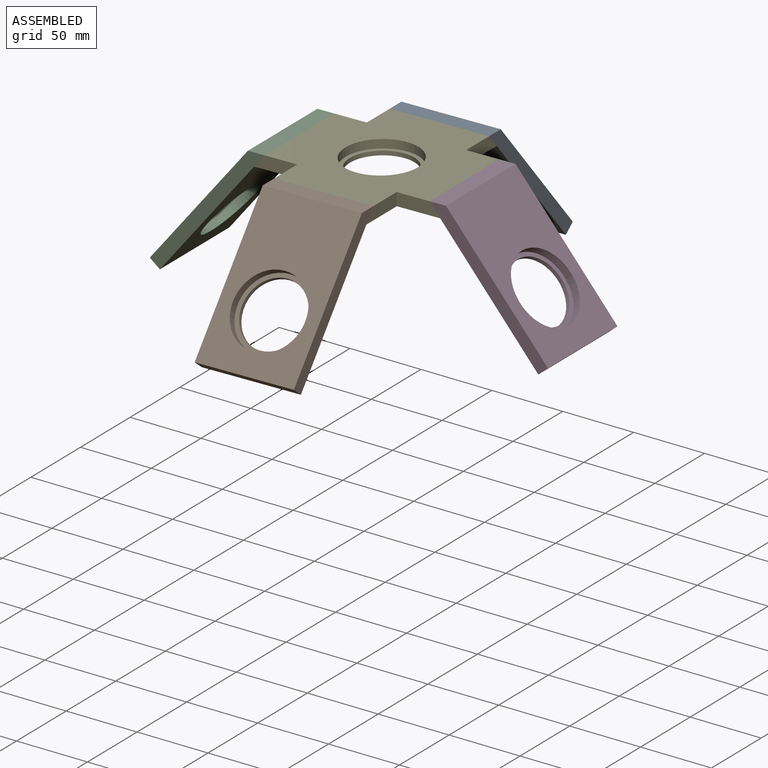
[diagram: assembled view]
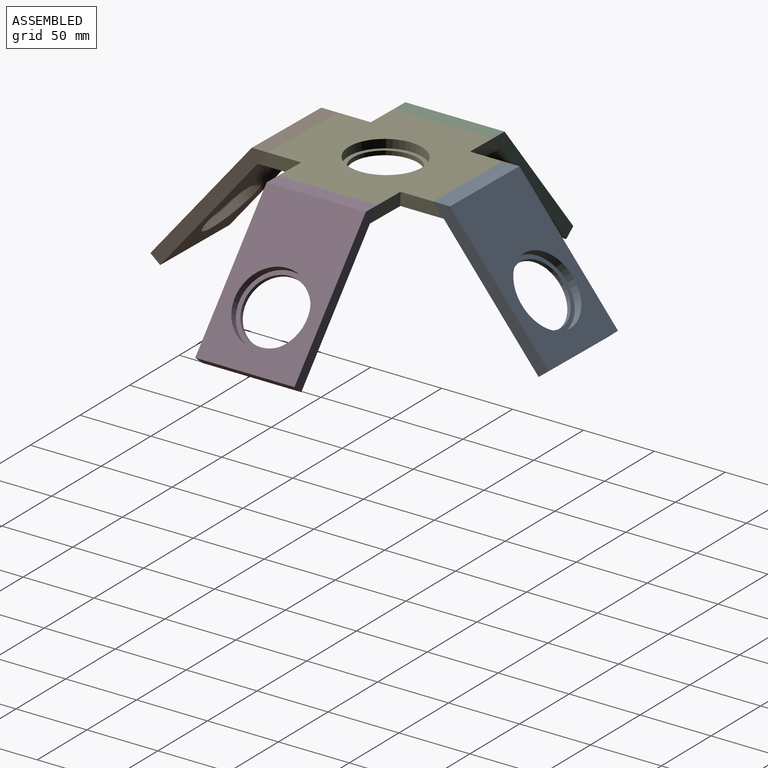
[diagram: assembled view, second angle]
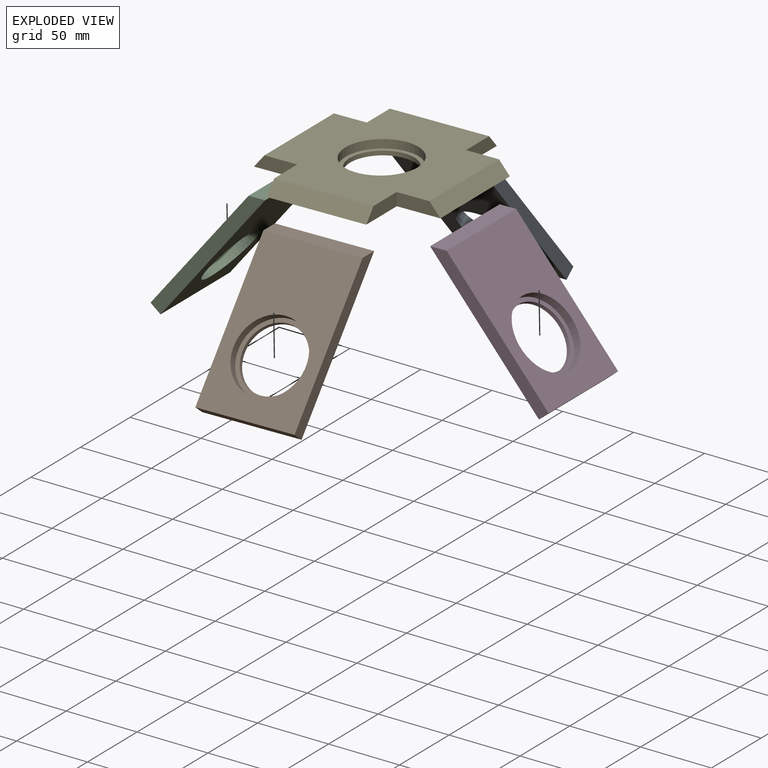
[diagram: exploded view]
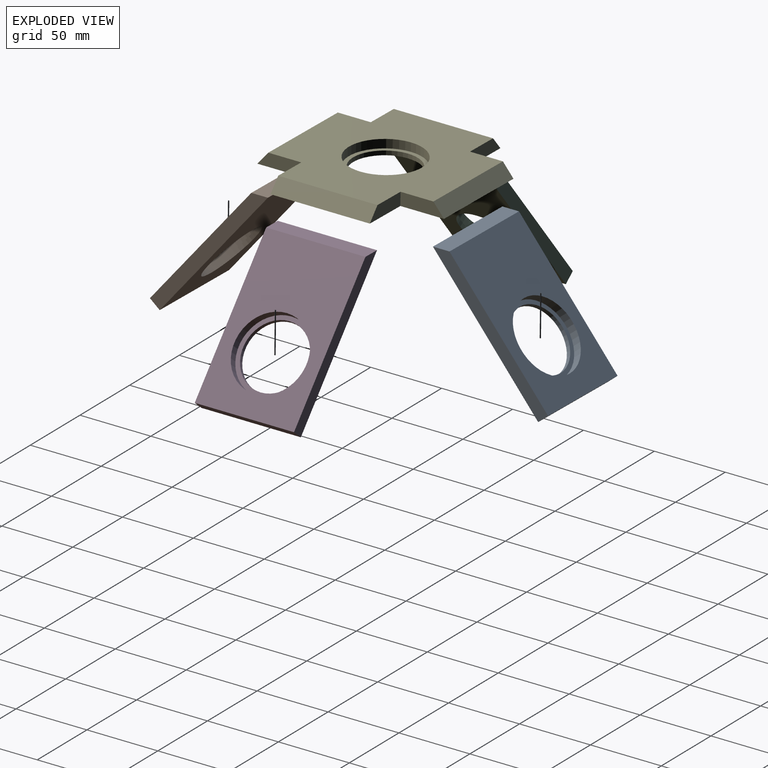
[diagram: exploded view, second angle]
ASSEMBLY  parts=5 mates=7
PART A: 9 faces, bbox 118.2x70x9 mm
  f0: plane 110.79x70mm, normal (0,0,-1), area 5712.4mm2, adj f2,f3,f4,f7,f8
  f1: cylinder r=22.5mm len=45mm, axis (0,0,-1), area 424.1mm2, adj f5,f6
  f2: plane 70x9mm, normal (-1,0,0), area 630mm2, adj f0,f3,f4,f5
  f3: plane 118.22x9mm, normal (0,-1,0), area 1030.5mm2, adj f0,f2,f5,f8
  f4: plane 118.22x9mm, normal (0,1,0), area 1030.5mm2, adj f0,f2,f5,f8
  f5: plane 118.22x70mm, normal (0,0,1), area 6684.7mm2, adj f1,f2,f3,f4,f8
  f6: plane 51x51mm, normal (0,0,-1), area 452.4mm2, adj f1,f7
  f7: cylinder r=25.5mm len=51mm, axis (0,0,-1), area 961.3mm2, adj f0,f6
  f8: plane 70x9mm, normal (0.77,0,-0.64), area 816.8mm2, adj f0,f3,f4,f5
PART B: same geometry as A
PART C: same geometry as A
PART D: same geometry as A
PART E: 18 faces, bbox 131.5x9x131.5 mm
  f0: plane 116.39x116.39mm, normal (0,-1,0), area 9352.4mm2, adj f1,f2,f3,f4,f7,f8,f9,f10
  f1: plane 30.75x9mm, normal (1,0,0), area 242.8mm2, adj f0,f7,f11,f17
  f2: plane 30.75x9mm, normal (-1,0,0), area 242.8mm2, adj f0,f3,f11,f17
  f3: plane 30.75x9mm, normal (0,0,1), area 243mm2, adj f0,f2,f5,f11,f14
  f4: plane 30.75x9mm, normal (0,0,-1), area 243mm2, adj f0,f5,f8,f11,f14
  f5: plane 70x0.05mm, normal (-1,0,0), area 3.7mm2, adj f3,f4,f11,f14
  f6: cylinder r=22.5mm len=45mm, axis (0,-1,0), area 424.1mm2, adj f11,f13
  f7: plane 30.75x9mm, normal (0,0,1), area 242.8mm2, adj f0,f1,f11,f15
  f8: plane 30.75x9mm, normal (-1,0,0), area 242.8mm2, adj f0,f4,f11,f16
  f9: plane 30.75x9mm, normal (1,0,0), area 242.8mm2, adj f0,f10,f11,f16
  f10: plane 30.75x9mm, normal (0,0,-1), area 242.8mm2, adj f0,f9,f11,f15
  f11: plane 131.5x131.5mm, normal (0,1,0), area 11919.3mm2, adj f1,f2,f3,f4,f5,f6,f7,f8
  f12: cylinder r=25.5mm len=51mm, axis (0,-1,0), area 961.3mm2, adj f0,f13
  f13: plane 51x51mm, normal (0,-1,0), area 452.4mm2, adj f6,f12
  f14: plane 70x8.95mm, normal (-0.76,-0.64,0), area 819.6mm2, adj f0,f3,f4,f5
  f15: plane 70x9mm, normal (0.77,-0.64,0), area 822.4mm2, adj f0,f7,f10,f11
  f16: plane 70x9mm, normal (0,-0.64,-0.77), area 822.4mm2, adj f0,f8,f9,f11
  f17: plane 70x9mm, normal (0,-0.64,0.77), area 822.4mm2, adj f0,f1,f2,f11
PLACE A rot(axis=(0.67,-0.67,0.32),145.5deg) t=(29.19,-41.65,-11.6)mm
PLACE B rot(axis=(-0.67,-0.67,-0.32),145.5deg) t=(29.19,-247.17,-11.6)mm
PLACE C rot(axis=(-0.9,0,-0.43),180deg) t=(-73.56,-144.41,-13.28)mm
PLACE D rot(axis=(0,-1,0),130.5deg) t=(131.94,-144.41,-9.93)mm
PLACE E rot(axis=(-0.58,-0.58,0.57),120.5deg) t=(28.69,-144.41,19.25)mm
MATE parallel A.f8 <-> E.f0  axis (-0.02,0,1) through (63.54,-86.22,28.82)mm
MATE parallel E.f0 <-> D.f8  axis (-0.02,0,1) through (86.73,-179.41,29.2)mm
MATE parallel E.f12 <-> D.f8  axis (-0.02,0,1) through (28.59,-144.41,25.25)mm
MATE planar D.f5 <-> E.f16  axis (-0.76,0,-0.65) through (122.22,-144.41,-12.4)mm
MATE parallel C.f8 <-> E.f0  axis (-0.02,0,1) through (-29.65,-109.41,27.3)mm
MATE parallel D.f5 <-> E.f16  axis (-0.76,0,-0.65) through (122.22,-144.41,-12.4)mm
MATE parallel B.f8 <-> E.f0  axis (-0.02,0,1) through (-6.45,-202.61,27.68)mm
